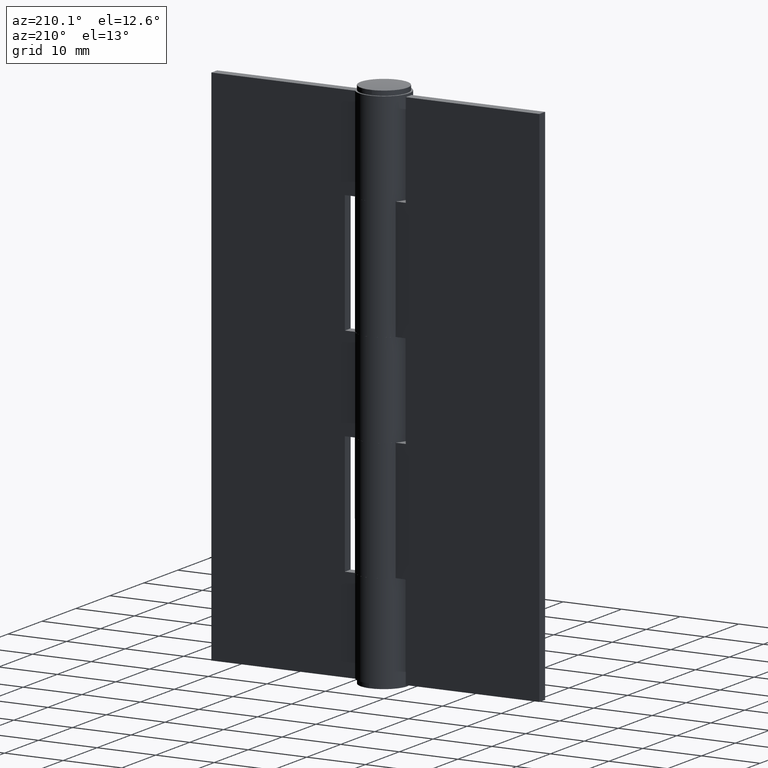
[diagram: clean part render]
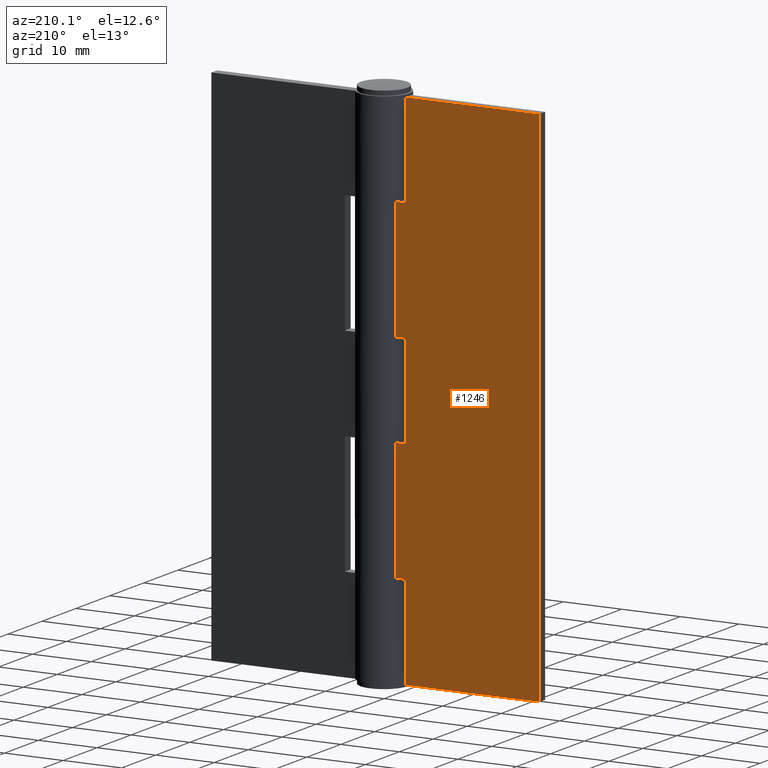
[diagram: same view with one face highlighted and labeled with its STEP entity id]
A machine part, auxiliary view. The second image highlights one B-rep face of the part: STEP entity #1246.
In plain terms, the highlighted face is a freeform B-spline surface patch.
Its self-contained STEP definition (entity closure, byte-faithful):
#665=CARTESIAN_POINT('',(-5.199996999999880,2.550000999999915,73.0));
#666=VERTEX_POINT('',#665);
#716=CARTESIAN_POINT('',(-3.462296188947490,2.550000999999895,73.0));
#717=VERTEX_POINT('',#716);
#754=CARTESIAN_POINT('',(-5.199996999999880,2.550000999999915,73.0));
#755=CARTESIAN_POINT('',(-3.462296188947490,2.550000999999895,73.0));
#756=QUASI_UNIFORM_CURVE('',1,(#754,#755),.UNSPECIFIED.,.F.,.U.);
#757=EDGE_CURVE('',#666,#717,#756,.T.);
#767=CARTESIAN_POINT('',(-5.199996999999880,2.550000999999895,89.0));
#768=VERTEX_POINT('',#767);
#776=CARTESIAN_POINT('',(-5.199996999999880,2.550000999999895,89.0));
#777=CARTESIAN_POINT('',(-5.199996999999880,2.550000999999915,73.0));
#778=QUASI_UNIFORM_CURVE('',1,(#776,#777),.UNSPECIFIED.,.F.,.U.);
#779=EDGE_CURVE('',#768,#666,#778,.T.);
#789=CARTESIAN_POINT('',(-5.199996999999880,2.550000999999915,15.999999999999750));
#790=VERTEX_POINT('',#789);
#797=CARTESIAN_POINT('',(-5.199996999999880,2.550000999999915,0.0));
#798=VERTEX_POINT('',#797);
#804=CARTESIAN_POINT('',(-5.199996999999880,2.550000999999915,15.999999999999750));
#805=CARTESIAN_POINT('',(-5.199996999999880,2.550000999999915,0.0));
#806=QUASI_UNIFORM_CURVE('',1,(#804,#805),.UNSPECIFIED.,.F.,.U.);
#807=EDGE_CURVE('',#790,#798,#806,.T.);
#817=CARTESIAN_POINT('',(-3.462296188947490,2.550000999999895,16.0));
#818=VERTEX_POINT('',#817);
#858=CARTESIAN_POINT('',(-3.462296188947490,2.550000999999895,16.0));
#859=CARTESIAN_POINT('',(-5.199996999999880,2.550000999999915,15.999999999999750));
#860=QUASI_UNIFORM_CURVE('',1,(#858,#859),.UNSPECIFIED.,.F.,.U.);
#861=EDGE_CURVE('',#818,#790,#860,.T.);
#871=CARTESIAN_POINT('',(-5.199996999999880,2.550000999999915,52.500000000000000));
#872=VERTEX_POINT('',#871);
#873=CARTESIAN_POINT('',(-3.462296188947490,2.550000999999895,52.500000000000000));
#874=VERTEX_POINT('',#873);
#875=CARTESIAN_POINT('',(-5.199996999999880,2.550000999999915,52.500000000000000));
#876=CARTESIAN_POINT('',(-3.462296188947490,2.550000999999895,52.500000000000000));
#877=QUASI_UNIFORM_CURVE('',1,(#875,#876),.UNSPECIFIED.,.F.,.U.);
#878=EDGE_CURVE('',#872,#874,#877,.T.);
#971=CARTESIAN_POINT('',(-5.199996999999880,2.550000999999915,36.500000000000000));
#972=VERTEX_POINT('',#971);
#973=CARTESIAN_POINT('',(-5.199996999999880,2.550000999999915,36.500000000000000));
#974=CARTESIAN_POINT('',(-5.199996999999880,2.550000999999915,52.500000000000000));
#975=QUASI_UNIFORM_CURVE('',1,(#973,#974),.UNSPECIFIED.,.F.,.U.);
#976=EDGE_CURVE('',#972,#872,#975,.T.);
#993=CARTESIAN_POINT('',(-3.462296188947490,2.550000999999895,36.500000000000000));
#994=VERTEX_POINT('',#993);
#995=CARTESIAN_POINT('',(-3.462296188947490,2.550000999999895,36.500000000000000));
#996=CARTESIAN_POINT('',(-5.199996999999880,2.550000999999915,36.500000000000000));
#997=QUASI_UNIFORM_CURVE('',1,(#995,#996),.UNSPECIFIED.,.F.,.U.);
#998=EDGE_CURVE('',#994,#972,#997,.T.);
#1045=CARTESIAN_POINT('',(-28.0,2.550000999999895,0.0));
#1046=VERTEX_POINT('',#1045);
#1053=CARTESIAN_POINT('',(-28.0,2.550000999999895,89.0));
#1054=VERTEX_POINT('',#1053);
#1060=CARTESIAN_POINT('',(-28.0,2.550000999999895,89.0));
#1061=CARTESIAN_POINT('',(-28.0,2.550000999999895,0.0));
#1062=QUASI_UNIFORM_CURVE('',1,(#1060,#1061),.UNSPECIFIED.,.F.,.U.);
#1063=EDGE_CURVE('',#1054,#1046,#1062,.T.);
#1073=CARTESIAN_POINT('',(-28.0,2.550000999999895,0.0));
#1074=CARTESIAN_POINT('',(-5.199996999999880,2.550000999999915,0.0));
#1075=QUASI_UNIFORM_CURVE('',1,(#1073,#1074),.UNSPECIFIED.,.F.,.U.);
#1076=EDGE_CURVE('',#1046,#798,#1075,.T.);
#1112=CARTESIAN_POINT('',(-3.462296188947490,2.550000999999895,36.500000000000000));
#1113=CARTESIAN_POINT('',(-3.462296188947490,2.550000999999895,16.0));
#1114=QUASI_UNIFORM_CURVE('',1,(#1112,#1113),.UNSPECIFIED.,.F.,.U.);
#1115=EDGE_CURVE('',#994,#818,#1114,.T.);
#1127=CARTESIAN_POINT('',(-28.0,2.550000999999895,89.0));
#1128=CARTESIAN_POINT('',(-5.199996999999880,2.550000999999895,89.0));
#1129=QUASI_UNIFORM_CURVE('',1,(#1127,#1128),.UNSPECIFIED.,.F.,.U.);
#1130=EDGE_CURVE('',#1054,#768,#1129,.T.);
#1216=CARTESIAN_POINT('',(-3.462296188947490,2.550000999999895,73.0));
#1217=CARTESIAN_POINT('',(-3.462296188947490,2.550000999999895,52.500000000000000));
#1218=QUASI_UNIFORM_CURVE('',1,(#1216,#1217),.UNSPECIFIED.,.F.,.U.);
#1219=EDGE_CURVE('',#717,#874,#1218,.T.);
#1227=CARTESIAN_POINT('',(-29.225658257803239,2.550000999999895,-4.445549827500730));
#1228=CARTESIAN_POINT('',(-29.225658257803239,2.550000999999895,93.445552214666776));
#1229=CARTESIAN_POINT('',(-2.236637272991747,2.550000999999895,-4.445549827500730));
#1230=CARTESIAN_POINT('',(-2.236637272991747,2.550000999999895,93.445552214666776));
#1231=B_SPLINE_SURFACE_WITH_KNOTS('',1,1,((#1227,#1229),(#1228,#1230)),.UNSPECIFIED.,.F.,.F.,.U.,(2,2),(2,2),(0.0,97.891102042167503),(0.0,26.989020984811500),.UNSPECIFIED.);
#1232=ORIENTED_EDGE('',*,*,#1130,.T.);
#1233=ORIENTED_EDGE('',*,*,#779,.T.);
#1234=ORIENTED_EDGE('',*,*,#757,.T.);
#1235=ORIENTED_EDGE('',*,*,#1219,.T.);
#1236=ORIENTED_EDGE('',*,*,#878,.F.);
#1237=ORIENTED_EDGE('',*,*,#976,.F.);
#1238=ORIENTED_EDGE('',*,*,#998,.F.);
#1239=ORIENTED_EDGE('',*,*,#1115,.T.);
#1240=ORIENTED_EDGE('',*,*,#861,.T.);
#1241=ORIENTED_EDGE('',*,*,#807,.T.);
#1242=ORIENTED_EDGE('',*,*,#1076,.F.);
#1243=ORIENTED_EDGE('',*,*,#1063,.F.);
#1244=EDGE_LOOP('',(#1232,#1233,#1234,#1235,#1236,#1237,#1238,#1239,#1240,#1241,#1242,#1243));
#1245=FACE_OUTER_BOUND('',#1244,.T.);
#1246=ADVANCED_FACE('',(#1245),#1231,.T.);